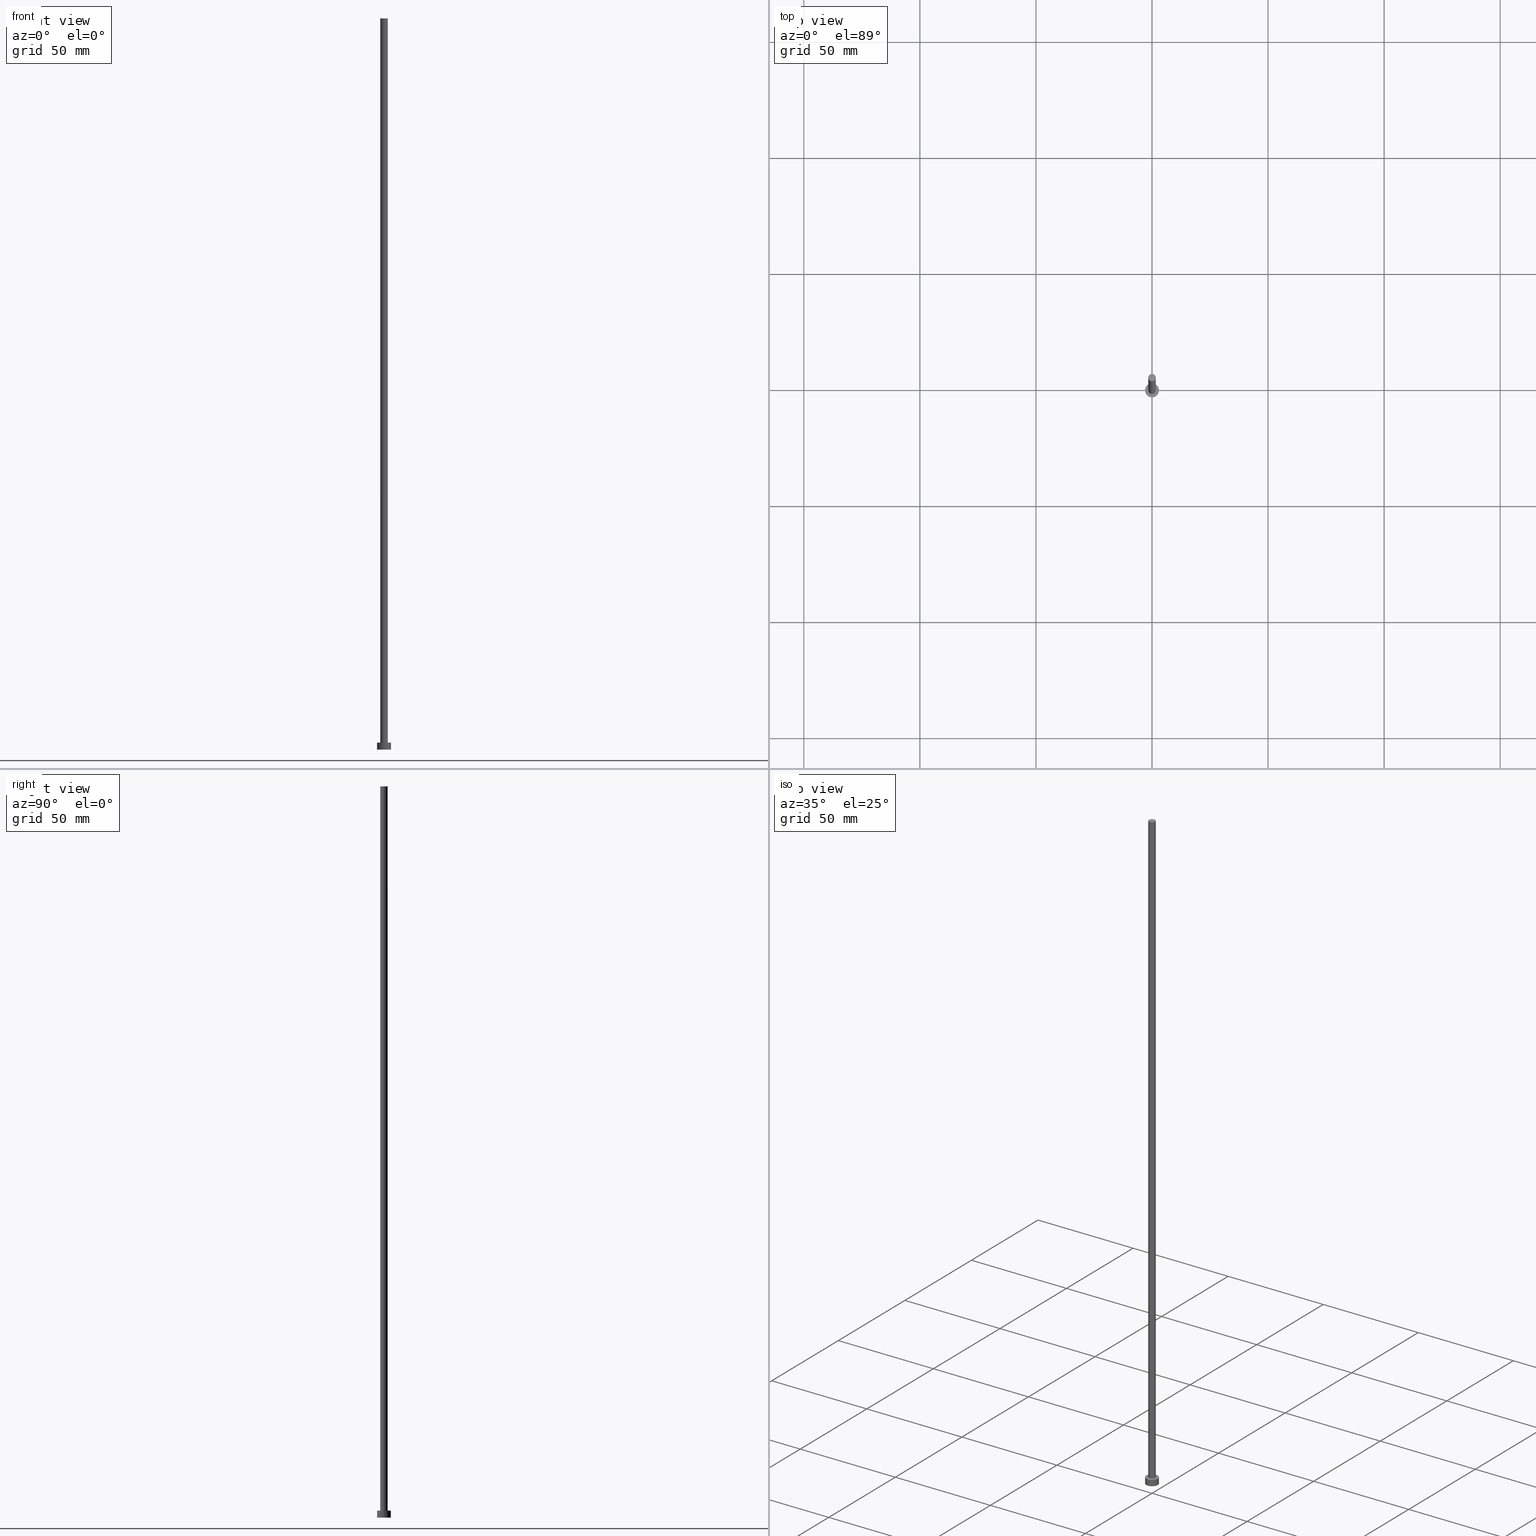
[diagram: canonical four-view strip — front | top / right | iso, engineering-drawing reading convention]
A machine part, canonical four-view strip (front | top / right | iso — engineering-drawing reading convention). The complete STEP part file that produces these views, byte-faithful:
ISO-10303-21;
HEADER;
FILE_DESCRIPTION (( 'STEP AP203' ),
    '1' );
FILE_NAME ('556c.STEP',
    '2023-02-13T16:24:55',
    ( '' ),
    ( '' ),
    'SwSTEP 2.0',
    'SolidWorks 2019',
    '' );
FILE_SCHEMA (( 'CONFIG_CONTROL_DESIGN' ));
ENDSEC;

DATA;
#1 = CARTESIAN_POINT ( 'NONE',  ( 0.000000000000000000, 0.000000000000000000, 315.0000000000000000 ) ) ;
#2 = LOCAL_TIME ( 17, 24, 55.00000000000000000, #14 ) ;
#3 = DIRECTION ( 'NONE',  ( -1.000000000000000000, 0.000000000000000000, 0.000000000000000000 ) ) ;
#4 = ADVANCED_FACE ( 'NONE', ( #195 ), #37, .T. ) ;
#5 = APPLICATION_CONTEXT ( 'configuration controlled 3d designs of mechanical parts and assemblies' ) ;
#6 = ADVANCED_FACE ( 'NONE', ( #231, #235 ), #70, .T. ) ;
#7 = FACE_OUTER_BOUND ( 'NONE', #29, .T. ) ;
#8 = CARTESIAN_POINT ( 'NONE',  ( -1.600000000000000089, 0.000000000000000000, 3.000000000000000000 ) ) ;
#9 = EDGE_LOOP ( 'NONE', ( #89, #134 ) ) ;
#10 = DIRECTION ( 'NONE',  ( 1.000000000000000000, 0.000000000000000000, 0.000000000000000000 ) ) ;
#11 = CARTESIAN_POINT ( 'NONE',  ( 0.000000000000000000, 0.000000000000000000, 315.0000000000000000 ) ) ;
#12 =( LENGTH_UNIT ( ) NAMED_UNIT ( * ) SI_UNIT ( .MILLI., .METRE. ) );
#13 = ORIENTED_EDGE ( 'NONE', *, *, #150, .F. ) ;
#14 = COORDINATED_UNIVERSAL_TIME_OFFSET ( 1, 0, .AHEAD. ) ;
#15 = CC_DESIGN_PERSON_AND_ORGANIZATION_ASSIGNMENT ( #228, #34, ( #173 ) ) ;
#16 = AXIS2_PLACEMENT_3D ( 'NONE', #140, #159, #242 ) ;
#17 = ORIENTED_EDGE ( 'NONE', *, *, #77, .F. ) ;
#18 = PERSON_AND_ORGANIZATION ( #128, #71 ) ;
#19 = DATE_AND_TIME ( #65, #95 ) ;
#20 = VERTEX_POINT ( 'NONE', #112 ) ;
#21 = CARTESIAN_POINT ( 'NONE',  ( 0.000000000000000000, 0.000000000000000000, 315.0000000000000000 ) ) ;
#22 = CIRCLE ( 'NONE', #96, 1.600000000000000089 ) ;
#23 = DIRECTION ( 'NONE',  ( 1.000000000000000000, 0.000000000000000000, -0.000000000000000000 ) ) ;
#24 = CARTESIAN_POINT ( 'NONE',  ( 0.000000000000000000, 0.000000000000000000, 3.000000000000000000 ) ) ;
#25 = DIRECTION ( 'NONE',  ( 1.000000000000000000, 0.000000000000000000, 0.000000000000000000 ) ) ;
#26 = ORIENTED_EDGE ( 'NONE', *, *, #198, .T. ) ;
#27 = CARTESIAN_POINT ( 'NONE',  ( 3.000000000000000444, 3.673940397442060361E-16, 0.000000000000000000 ) ) ;
#28 = CLOSED_SHELL ( 'NONE', ( #181, #85, #243, #6, #184, #149, #4 ) ) ;
#29 = EDGE_LOOP ( 'NONE', ( #13, #99, #229, #206 ) ) ;
#30 = APPROVAL_STATUS ( 'not_yet_approved' ) ;
#31 = LOCAL_TIME ( 17, 24, 55.00000000000000000, #227 ) ;
#32 = ORIENTED_EDGE ( 'NONE', *, *, #222, .F. ) ;
#33 = VECTOR ( 'NONE', #244, 1000.000000000000000 ) ;
#34 = PERSON_AND_ORGANIZATION_ROLE ( 'classification_officer' ) ;
#35 = DATE_TIME_ROLE ( 'classification_date' ) ;
#36 = DIRECTION ( 'NONE',  ( -0.000000000000000000, -0.000000000000000000, -1.000000000000000000 ) ) ;
#37 = PLANE ( 'NONE',  #225 ) ;
#38 = CARTESIAN_POINT ( 'NONE',  ( 1.600000000000000089, 1.959434878635765230E-16, 3.000000000000000000 ) ) ;
#39 = CARTESIAN_POINT ( 'NONE',  ( 3.000000000000000444, 3.673940397442060361E-16, 3.000000000000000000 ) ) ;
#40 = EDGE_LOOP ( 'NONE', ( #107, #146, #120, #193 ) ) ;
#41 = DIRECTION ( 'NONE',  ( -1.000000000000000000, 0.000000000000000000, 0.000000000000000000 ) ) ;
#42 = ORIENTED_EDGE ( 'NONE', *, *, #198, .F. ) ;
#43 = FACE_OUTER_BOUND ( 'NONE', #241, .T. ) ;
#44 = DATE_AND_TIME ( #167, #31 ) ;
#45 = ORIENTED_EDGE ( 'NONE', *, *, #163, .F. ) ;
#46 = CARTESIAN_POINT ( 'NONE',  ( -1.600000000000000089, 0.000000000000000000, 315.0000000000000000 ) ) ;
#47 = CC_DESIGN_SECURITY_CLASSIFICATION ( #173, ( #217 ) ) ;
#48 = APPROVAL_DATE_TIME ( #131, #153 ) ;
#49 = VECTOR ( 'NONE', #197, 1000.000000000000000 ) ;
#50 = CARTESIAN_POINT ( 'NONE',  ( 0.000000000000000000, 0.000000000000000000, 3.000000000000000000 ) ) ;
#51 = DIRECTION ( 'NONE',  ( -0.000000000000000000, -0.000000000000000000, -1.000000000000000000 ) ) ;
#52 = CIRCLE ( 'NONE', #182, 1.600000000000000089 ) ;
#53 = CARTESIAN_POINT ( 'NONE',  ( 0.000000000000000000, 0.000000000000000000, 3.000000000000000000 ) ) ;
#54 = FACE_OUTER_BOUND ( 'NONE', #57, .T. ) ;
#55 = CIRCLE ( 'NONE', #208, 1.600000000000000089 ) ;
#56 = CARTESIAN_POINT ( 'NONE',  ( 0.000000000000000000, 0.000000000000000000, 3.000000000000000000 ) ) ;
#57 = EDGE_LOOP ( 'NONE', ( #192, #32 ) ) ;
#58 = DIRECTION ( 'NONE',  ( 1.000000000000000000, 0.000000000000000000, 0.000000000000000000 ) ) ;
#59 = CALENDAR_DATE ( 2023, 13, 2 ) ;
#60 = ORIENTED_EDGE ( 'NONE', *, *, #66, .F. ) ;
#61 = CARTESIAN_POINT ( 'NONE',  ( 0.000000000000000000, 0.000000000000000000, 0.000000000000000000 ) ) ;
#62 = PERSON_AND_ORGANIZATION ( #128, #71 ) ;
#63 = PERSON_AND_ORGANIZATION ( #128, #71 ) ;
#64 = VERTEX_POINT ( 'NONE', #109 ) ;
#65 = CALENDAR_DATE ( 2023, 13, 2 ) ;
#66 = EDGE_CURVE ( 'NONE', #81, #90, #22, .T. ) ;
#67 = VERTEX_POINT ( 'NONE', #152 ) ;
#68 = AXIS2_PLACEMENT_3D ( 'NONE', #53, #233, #215 ) ;
#69 = CARTESIAN_POINT ( 'NONE',  ( 0.000000000000000000, 0.000000000000000000, 3.000000000000000000 ) ) ;
#70 = PLANE ( 'NONE',  #68 ) ;
#71 = ORGANIZATION ( 'NEUR�EN�', 'NEUR�EN�', '' ) ;
#72 = CARTESIAN_POINT ( 'NONE',  ( 0.000000000000000000, 0.000000000000000000, 315.0000000000000000 ) ) ;
#73 = DIRECTION ( 'NONE',  ( 0.000000000000000000, 0.000000000000000000, 1.000000000000000000 ) ) ;
#74 = CYLINDRICAL_SURFACE ( 'NONE', #16, 3.000000000000000444 ) ;
#75 = EDGE_CURVE ( 'NONE', #64, #20, #123, .T. ) ;
#76 = CYLINDRICAL_SURFACE ( 'NONE', #175, 1.600000000000000089 ) ;
#77 = EDGE_CURVE ( 'NONE', #90, #124, #251, .T. ) ;
#78 = APPROVAL_ROLE ( '' ) ;
#79 = AXIS2_PLACEMENT_3D ( 'NONE', #115, #93, #10 ) ;
#80 = PERSON_AND_ORGANIZATION ( #128, #71 ) ;
#81 = VERTEX_POINT ( 'NONE', #174 ) ;
#82 = EDGE_CURVE ( 'NONE', #20, #64, #156, .T. ) ;
#83 =( NAMED_UNIT ( * ) PLANE_ANGLE_UNIT ( ) SI_UNIT ( $, .RADIAN. ) );
#84 = CALENDAR_DATE ( 2023, 13, 2 ) ;
#85 = ADVANCED_FACE ( 'NONE', ( #253 ), #213, .T. ) ;
#86 = DIRECTION ( 'NONE',  ( 1.000000000000000000, 0.000000000000000000, 0.000000000000000000 ) ) ;
#87 = DIRECTION ( 'NONE',  ( 0.000000000000000000, 0.000000000000000000, 1.000000000000000000 ) ) ;
#88 = CIRCLE ( 'NONE', #157, 3.000000000000000444 ) ;
#89 = ORIENTED_EDGE ( 'NONE', *, *, #82, .T. ) ;
#90 = VERTEX_POINT ( 'NONE', #255 ) ;
#91 = FACE_OUTER_BOUND ( 'NONE', #189, .T. ) ;
#92 = APPROVAL_PERSON_ORGANIZATION ( #145, #137, #247 ) ;
#93 = DIRECTION ( 'NONE',  ( 0.000000000000000000, 0.000000000000000000, 1.000000000000000000 ) ) ;
#94 = DIRECTION ( 'NONE',  ( 1.000000000000000000, 0.000000000000000000, -0.000000000000000000 ) ) ;
#95 = LOCAL_TIME ( 17, 24, 55.00000000000000000, #105 ) ;
#96 = AXIS2_PLACEMENT_3D ( 'NONE', #21, #176, #169 ) ;
#97 = DIRECTION ( 'NONE',  ( 1.000000000000000000, 0.000000000000000000, 0.000000000000000000 ) ) ;
#98 = PERSON_AND_ORGANIZATION_ROLE ( 'creator' ) ;
#99 = ORIENTED_EDGE ( 'NONE', *, *, #82, .F. ) ;
#100 = DIRECTION ( 'NONE',  ( 0.000000000000000000, 0.000000000000000000, 1.000000000000000000 ) ) ;
#101 = EDGE_LOOP ( 'NONE', ( #218, #201 ) ) ;
#102 = DATE_AND_TIME ( #205, #240 ) ;
#103 = CIRCLE ( 'NONE', #252, 1.600000000000000089 ) ;
#104 =( NAMED_UNIT ( * ) SI_UNIT ( $, .STERADIAN. ) SOLID_ANGLE_UNIT ( ) );
#105 = COORDINATED_UNIVERSAL_TIME_OFFSET ( 1, 0, .AHEAD. ) ;
#106 = PRODUCT_RELATED_PRODUCT_CATEGORY ( 'detail', '', ( #249 ) ) ;
#107 = ORIENTED_EDGE ( 'NONE', *, *, #75, .F. ) ;
#108 = CC_DESIGN_DATE_AND_TIME_ASSIGNMENT ( #19, #35, ( #173 ) ) ;
#109 = CARTESIAN_POINT ( 'NONE',  ( 3.000000000000000444, 3.673940397442060361E-16, 3.000000000000000000 ) ) ;
#110 = ORIENTED_EDGE ( 'NONE', *, *, #158, .F. ) ;
#111 = MANIFOLD_SOLID_BREP ( 'P�idat vysunut�m3', #28 ) ;
#112 = CARTESIAN_POINT ( 'NONE',  ( -3.000000000000000444, 0.000000000000000000, 3.000000000000000000 ) ) ;
#113 = CC_DESIGN_PERSON_AND_ORGANIZATION_ASSIGNMENT ( #62, #98, ( #239 ) ) ;
#114 = EDGE_CURVE ( 'NONE', #20, #67, #136, .T. ) ;
#115 = CARTESIAN_POINT ( 'NONE',  ( 0.000000000000000000, 0.000000000000000000, 0.000000000000000000 ) ) ;
#116 = AXIS2_PLACEMENT_3D ( 'NONE', #133, #135, #232 ) ;
#117 = CARTESIAN_POINT ( 'NONE',  ( 0.000000000000000000, 0.000000000000000000, 0.000000000000000000 ) ) ;
#118 = ORIENTED_EDGE ( 'NONE', *, *, #77, .T. ) ;
#119 = DIRECTION ( 'NONE',  ( 0.000000000000000000, 0.000000000000000000, 1.000000000000000000 ) ) ;
#120 = ORIENTED_EDGE ( 'NONE', *, *, #222, .T. ) ;
#121 = DESIGN_CONTEXT ( 'detailed design', #5, 'design' ) ;
#122 =( GEOMETRIC_REPRESENTATION_CONTEXT ( 3 ) GLOBAL_UNCERTAINTY_ASSIGNED_CONTEXT ( ( #221 ) ) GLOBAL_UNIT_ASSIGNED_CONTEXT ( ( #12, #83, #104 ) ) REPRESENTATION_CONTEXT ( 'NONE', 'WORKASPACE' ) );
#123 = CIRCLE ( 'NONE', #191, 3.000000000000000444 ) ;
#124 = VERTEX_POINT ( 'NONE', #8 ) ;
#125 = COORDINATED_UNIVERSAL_TIME_OFFSET ( 1, 0, .AHEAD. ) ;
#126 = APPROVAL_DATE_TIME ( #226, #160 ) ;
#127 = PERSON_AND_ORGANIZATION_ROLE ( 'creator' ) ;
#128 = PERSON ( 'NEUR�EN�', 'NEUR�EN�', 'NEUR�EN�', ('NEUR�EN�'), ('NEUR�EN�'), ('NEUR�EN�') ) ;
#129 = CC_DESIGN_PERSON_AND_ORGANIZATION_ASSIGNMENT ( #18, #127, ( #217 ) ) ;
#130 = APPLICATION_PROTOCOL_DEFINITION ( 'international standard', 'config_control_design', 1994, #245 ) ;
#131 = DATE_AND_TIME ( #84, #172 ) ;
#132 = CC_DESIGN_APPROVAL ( #153, ( #173 ) ) ;
#133 = CARTESIAN_POINT ( 'NONE',  ( 0.000000000000000000, 0.000000000000000000, 3.000000000000000000 ) ) ;
#134 = ORIENTED_EDGE ( 'NONE', *, *, #75, .T. ) ;
#135 = DIRECTION ( 'NONE',  ( 0.000000000000000000, 0.000000000000000000, 1.000000000000000000 ) ) ;
#136 = LINE ( 'NONE', #155, #49 ) ;
#137 = APPROVAL ( #209, 'NEUR�EN�' ) ;
#138 = EDGE_CURVE ( 'NONE', #124, #204, #103, .T. ) ;
#139 = DIRECTION ( 'NONE',  ( -0.000000000000000000, -0.000000000000000000, -1.000000000000000000 ) ) ;
#140 = CARTESIAN_POINT ( 'NONE',  ( 0.000000000000000000, 0.000000000000000000, 3.000000000000000000 ) ) ;
#141 = CYLINDRICAL_SURFACE ( 'NONE', #203, 1.600000000000000089 ) ;
#142 = CARTESIAN_POINT ( 'NONE',  ( 1.600000000000000089, 1.959434878635765230E-16, 315.0000000000000000 ) ) ;
#143 = PLANE ( 'NONE',  #236 ) ;
#144 = DIRECTION ( 'NONE',  ( 1.000000000000000000, 0.000000000000000000, 0.000000000000000000 ) ) ;
#145 = PERSON_AND_ORGANIZATION ( #128, #71 ) ;
#146 = ORIENTED_EDGE ( 'NONE', *, *, #150, .T. ) ;
#147 = VECTOR ( 'NONE', #139, 1000.000000000000000 ) ;
#148 = SECURITY_CLASSIFICATION_LEVEL ( 'unclassified' ) ;
#149 = ADVANCED_FACE ( 'NONE', ( #43 ), #76, .T. ) ;
#150 = EDGE_CURVE ( 'NONE', #64, #199, #216, .T. ) ;
#151 = ORIENTED_EDGE ( 'NONE', *, *, #158, .T. ) ;
#152 = CARTESIAN_POINT ( 'NONE',  ( -3.000000000000000444, 0.000000000000000000, 0.000000000000000000 ) ) ;
#153 = APPROVAL ( #212, 'NEUR�EN�' ) ;
#154 = EDGE_CURVE ( 'NONE', #67, #199, #88, .T. ) ;
#155 = CARTESIAN_POINT ( 'NONE',  ( -3.000000000000000444, 0.000000000000000000, 3.000000000000000000 ) ) ;
#156 = CIRCLE ( 'NONE', #116, 3.000000000000000444 ) ;
#157 = AXIS2_PLACEMENT_3D ( 'NONE', #117, #179, #220 ) ;
#158 = EDGE_CURVE ( 'NONE', #204, #124, #52, .T. ) ;
#159 = DIRECTION ( 'NONE',  ( -0.000000000000000000, -0.000000000000000000, -1.000000000000000000 ) ) ;
#160 = APPROVAL ( #30, 'NEUR�EN�' ) ;
#161 = DIRECTION ( 'NONE',  ( -0.000000000000000000, -0.000000000000000000, -1.000000000000000000 ) ) ;
#162 = PERSON_AND_ORGANIZATION_ROLE ( 'design_owner' ) ;
#163 = EDGE_CURVE ( 'NONE', #90, #81, #55, .T. ) ;
#164 = APPROVAL_PERSON_ORGANIZATION ( #190, #153, #171 ) ;
#165 = DATE_TIME_ROLE ( 'creation_date' ) ;
#166 = PERSON_AND_ORGANIZATION ( #128, #71 ) ;
#167 = CALENDAR_DATE ( 2023, 13, 2 ) ;
#168 = PRODUCT_DEFINITION_SHAPE ( 'NONE', 'NONE',  #239 ) ;
#169 = DIRECTION ( 'NONE',  ( 1.000000000000000000, 0.000000000000000000, 0.000000000000000000 ) ) ;
#170 = DIRECTION ( 'NONE',  ( 0.000000000000000000, 0.000000000000000000, 1.000000000000000000 ) ) ;
#171 = APPROVAL_ROLE ( '' ) ;
#172 = LOCAL_TIME ( 17, 24, 55.00000000000000000, #234 ) ;
#173 = SECURITY_CLASSIFICATION ( '', '', #148 ) ;
#174 = CARTESIAN_POINT ( 'NONE',  ( 1.600000000000000089, 1.959434878635765230E-16, 315.0000000000000000 ) ) ;
#175 = AXIS2_PLACEMENT_3D ( 'NONE', #202, #161, #41 ) ;
#176 = DIRECTION ( 'NONE',  ( 0.000000000000000000, 0.000000000000000000, 1.000000000000000000 ) ) ;
#177 = CARTESIAN_POINT ( 'NONE',  ( 0.000000000000000000, 0.000000000000000000, 0.000000000000000000 ) ) ;
#178 = AXIS2_PLACEMENT_3D ( 'NONE', #69, #36, #194 ) ;
#179 = DIRECTION ( 'NONE',  ( 0.000000000000000000, 0.000000000000000000, 1.000000000000000000 ) ) ;
#180 = DIRECTION ( 'NONE',  ( 0.000000000000000000, 0.000000000000000000, 1.000000000000000000 ) ) ;
#181 = ADVANCED_FACE ( 'NONE', ( #91 ), #141, .T. ) ;
#182 = AXIS2_PLACEMENT_3D ( 'NONE', #24, #73, #58 ) ;
#183 = CC_DESIGN_PERSON_AND_ORGANIZATION_ASSIGNMENT ( #80, #248, ( #217 ) ) ;
#184 = ADVANCED_FACE ( 'NONE', ( #54 ), #143, .F. ) ;
#185 = AXIS2_PLACEMENT_3D ( 'NONE', #61, #100, #144 ) ;
#186 = MECHANICAL_CONTEXT ( 'NONE', #245, 'mechanical' ) ;
#187 = EDGE_LOOP ( 'NONE', ( #230, #110 ) ) ;
#188 = APPROVAL_DATE_TIME ( #44, #137 ) ;
#189 = EDGE_LOOP ( 'NONE', ( #60, #26, #151, #17 ) ) ;
#190 = PERSON_AND_ORGANIZATION ( #128, #71 ) ;
#191 = AXIS2_PLACEMENT_3D ( 'NONE', #50, #87, #86 ) ;
#192 = ORIENTED_EDGE ( 'NONE', *, *, #154, .F. ) ;
#193 = ORIENTED_EDGE ( 'NONE', *, *, #114, .F. ) ;
#194 = DIRECTION ( 'NONE',  ( -1.000000000000000000, 0.000000000000000000, 0.000000000000000000 ) ) ;
#195 = FACE_OUTER_BOUND ( 'NONE', #101, .T. ) ;
#196 = CIRCLE ( 'NONE', #79, 3.000000000000000444 ) ;
#197 = DIRECTION ( 'NONE',  ( -0.000000000000000000, -0.000000000000000000, -1.000000000000000000 ) ) ;
#198 = EDGE_CURVE ( 'NONE', #81, #204, #223, .T. ) ;
#199 = VERTEX_POINT ( 'NONE', #27 ) ;
#200 = DIRECTION ( 'NONE',  ( -0.000000000000000000, -0.000000000000000000, -1.000000000000000000 ) ) ;
#201 = ORIENTED_EDGE ( 'NONE', *, *, #66, .T. ) ;
#202 = CARTESIAN_POINT ( 'NONE',  ( 0.000000000000000000, 0.000000000000000000, 315.0000000000000000 ) ) ;
#203 = AXIS2_PLACEMENT_3D ( 'NONE', #11, #200, #3 ) ;
#204 = VERTEX_POINT ( 'NONE', #38 ) ;
#205 = CALENDAR_DATE ( 2023, 13, 2 ) ;
#206 = ORIENTED_EDGE ( 'NONE', *, *, #154, .T. ) ;
#207 = APPLICATION_PROTOCOL_DEFINITION ( 'international standard', 'config_control_design', 1994, #5 ) ;
#208 = AXIS2_PLACEMENT_3D ( 'NONE', #72, #119, #25 ) ;
#209 = APPROVAL_STATUS ( 'not_yet_approved' ) ;
#210 = ADVANCED_BREP_SHAPE_REPRESENTATION ( '556c', ( #111, #185 ), #122 ) ;
#211 = ORIENTED_EDGE ( 'NONE', *, *, #138, .T. ) ;
#212 = APPROVAL_STATUS ( 'not_yet_approved' ) ;
#213 = CYLINDRICAL_SURFACE ( 'NONE', #178, 3.000000000000000444 ) ;
#214 = CC_DESIGN_APPROVAL ( #160, ( #239 ) ) ;
#215 = DIRECTION ( 'NONE',  ( 1.000000000000000000, 0.000000000000000000, -0.000000000000000000 ) ) ;
#216 = LINE ( 'NONE', #39, #33 ) ;
#217 = PRODUCT_DEFINITION_FORMATION_WITH_SPECIFIED_SOURCE ( 'LIBOVOLN�', '', #249, .NOT_KNOWN. ) ;
#218 = ORIENTED_EDGE ( 'NONE', *, *, #163, .T. ) ;
#219 = VECTOR ( 'NONE', #51, 1000.000000000000000 ) ;
#220 = DIRECTION ( 'NONE',  ( 1.000000000000000000, 0.000000000000000000, 0.000000000000000000 ) ) ;
#221 = UNCERTAINTY_MEASURE_WITH_UNIT (LENGTH_MEASURE( 1.000000000000000082E-05 ), #12, 'distance_accuracy_value', 'NONE');
#222 = EDGE_CURVE ( 'NONE', #199, #67, #196, .T. ) ;
#223 = LINE ( 'NONE', #142, #147 ) ;
#224 = APPROVAL_PERSON_ORGANIZATION ( #63, #160, #78 ) ;
#225 = AXIS2_PLACEMENT_3D ( 'NONE', #1, #170, #23 ) ;
#226 = DATE_AND_TIME ( #59, #2 ) ;
#227 = COORDINATED_UNIVERSAL_TIME_OFFSET ( 1, 0, .AHEAD. ) ;
#228 = PERSON_AND_ORGANIZATION ( #128, #71 ) ;
#229 = ORIENTED_EDGE ( 'NONE', *, *, #114, .T. ) ;
#230 = ORIENTED_EDGE ( 'NONE', *, *, #138, .F. ) ;
#231 = FACE_BOUND ( 'NONE', #187, .T. ) ;
#232 = DIRECTION ( 'NONE',  ( 1.000000000000000000, 0.000000000000000000, 0.000000000000000000 ) ) ;
#233 = DIRECTION ( 'NONE',  ( 0.000000000000000000, 0.000000000000000000, 1.000000000000000000 ) ) ;
#234 = COORDINATED_UNIVERSAL_TIME_OFFSET ( 1, 0, .AHEAD. ) ;
#235 = FACE_OUTER_BOUND ( 'NONE', #9, .T. ) ;
#236 = AXIS2_PLACEMENT_3D ( 'NONE', #177, #238, #94 ) ;
#237 = CC_DESIGN_DATE_AND_TIME_ASSIGNMENT ( #102, #165, ( #239 ) ) ;
#238 = DIRECTION ( 'NONE',  ( 0.000000000000000000, 0.000000000000000000, 1.000000000000000000 ) ) ;
#239 = PRODUCT_DEFINITION ( 'NEZN�M�', '', #217, #121 ) ;
#240 = LOCAL_TIME ( 17, 24, 55.00000000000000000, #125 ) ;
#241 = EDGE_LOOP ( 'NONE', ( #42, #45, #118, #211 ) ) ;
#242 = DIRECTION ( 'NONE',  ( -1.000000000000000000, 0.000000000000000000, 0.000000000000000000 ) ) ;
#243 = ADVANCED_FACE ( 'NONE', ( #7 ), #74, .T. ) ;
#244 = DIRECTION ( 'NONE',  ( -0.000000000000000000, -0.000000000000000000, -1.000000000000000000 ) ) ;
#245 = APPLICATION_CONTEXT ( 'configuration controlled 3d designs of mechanical parts and assemblies' ) ;
#246 = CC_DESIGN_APPROVAL ( #137, ( #217 ) ) ;
#247 = APPROVAL_ROLE ( '' ) ;
#248 = PERSON_AND_ORGANIZATION_ROLE ( 'design_supplier' ) ;
#249 = PRODUCT ( '556c', '556c', '', ( #186 ) ) ;
#250 = CC_DESIGN_PERSON_AND_ORGANIZATION_ASSIGNMENT ( #166, #162, ( #249 ) ) ;
#251 = LINE ( 'NONE', #46, #219 ) ;
#252 = AXIS2_PLACEMENT_3D ( 'NONE', #56, #180, #97 ) ;
#253 = FACE_OUTER_BOUND ( 'NONE', #40, .T. ) ;
#254 = SHAPE_DEFINITION_REPRESENTATION ( #168, #210 ) ;
#255 = CARTESIAN_POINT ( 'NONE',  ( -1.600000000000000089, 0.000000000000000000, 315.0000000000000000 ) ) ;
ENDSEC;
END-ISO-10303-21;
